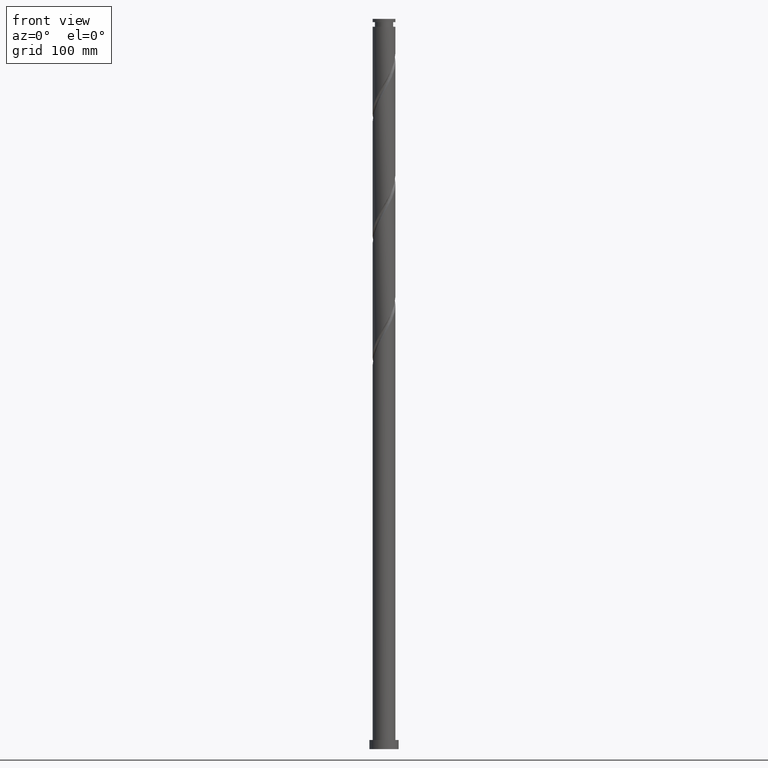
[diagram: clean part render]
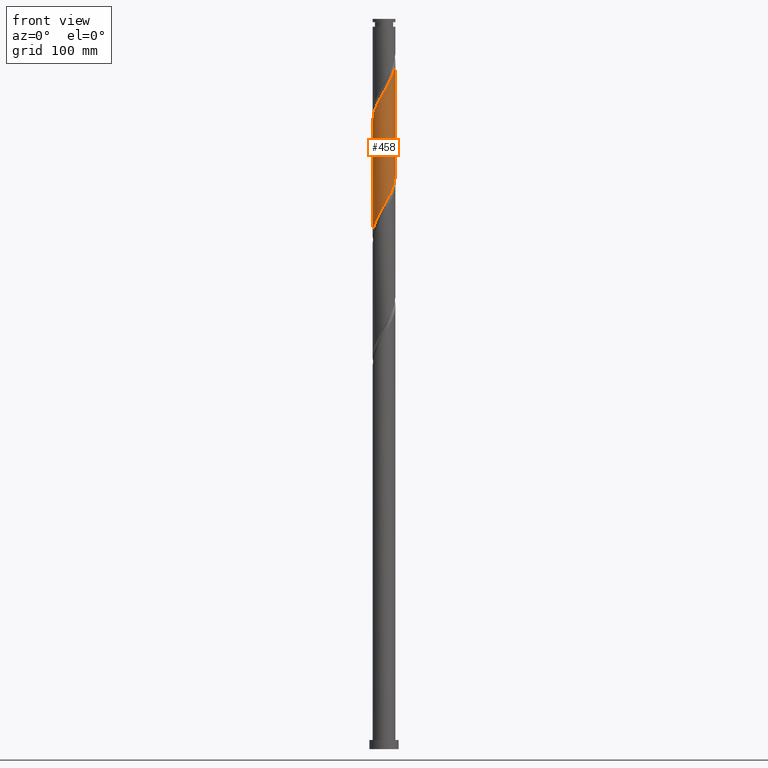
[diagram: same view with one face highlighted and labeled with its STEP entity id]
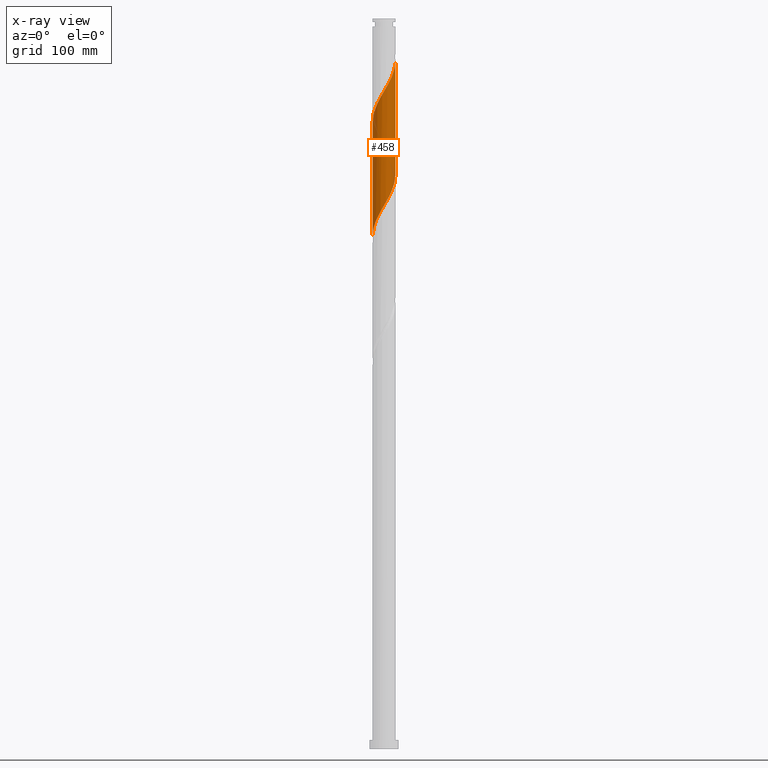
[diagram: x-ray of the same camera — body ghosted, the highlighted face saturated]
A machine part, front view. The second image highlights one B-rep face of the part: STEP entity #458.
The next image is the same camera in x-ray: the body ghosted, the highlighted face saturated — about 0% of this face is hidden behind the body in this view.
In plain terms, the highlighted cylindrical surface (edge-blend (fillet) strip) has radius 12.5 mm, axis along (-0, -0, -1).
Its self-contained STEP definition (entity closure, byte-faithful):
#2 = VECTOR ( 'NONE', #235, 1000.000000000000000 ) ;
#12 = CARTESIAN_POINT ( 'NONE',  ( -3.502532532788456887, -12.04388247588127570, 589.6548834491892421 ) ) ;
#14 = CARTESIAN_POINT ( 'NONE',  ( 12.50000000000001421, 5.971485022808058898E-15, 753.8240038799792728 ) ) ;
#29 = CARTESIAN_POINT ( 'NONE',  ( -11.26451581851407546, -5.418549932818430115, 696.6724273088383370 ) ) ;
#40 = CARTESIAN_POINT ( 'NONE',  ( -12.41357356760536668, -1.467375644356205155, 689.6548834491892421 ) ) ;
#53 = EDGE_LOOP ( 'NONE', ( #367, #498, #605, #328 ) ) ;
#62 = CARTESIAN_POINT ( 'NONE',  ( 12.00274651105806001, -3.490569608428352844, 622.9882167825226134 ) ) ;
#85 = CARTESIAN_POINT ( 'NONE',  ( 11.61580572391704358, -4.617689615404707126, 745.7952343263822286 ) ) ;
#108 = CARTESIAN_POINT ( 'NONE',  ( 6.330259180984804779, -10.77858147909816822, 731.7601466070838114 ) ) ;
#124 = CARTESIAN_POINT ( 'NONE',  ( 11.99843839451384575, -3.655176511351809765, 747.5496202912943318 ) ) ;
#140 = EDGE_CURVE ( 'NONE', #665, #241, #2147, .T. ) ;
#182 =( BOUNDED_CURVE ( )  B_SPLINE_CURVE ( 2, ( #975, #2081, #40, #999, #1697, #444, #29, #2073, #775, #801, #1504, #2226, #589, #1527, #2249, #1198, #2273, #1226, #847, #1956, #1746, #284, #1035, #2321, #1558, #1185, #108, #490, #861, #636, #1719, #1025, #1730, #682, #85, #124, #1570, #1911, #269, #1011, #310 ),
 .UNSPECIFIED., .F., .T. ) 
 B_SPLINE_CURVE_WITH_KNOTS ( ( 3, 2, 2, 2, 2, 2, 2, 2, 2, 2, 2, 2, 2, 2, 2, 2, 2, 2, 2, 2, 3 ),
 ( 0.5545295809515951024, 0.5592105263157894912, 0.5657894736842105088, 0.5723684210526316374, 0.5789473684210526550, 0.5855263157894736725, 0.5921052631578946901, 0.5986842105263157077, 0.6052631578947368363, 0.6118421052631579649, 0.6184210526315789824, 0.6250000000000000000, 0.6315789473684210176, 0.6381578947368420351, 0.6447368421052631637, 0.6513157894736842923, 0.6578947368421053099, 0.6644736842105263275, 0.6710526315789473450, 0.6776315789473683626, 0.6795295809515952135 ),
 .UNSPECIFIED. ) 
 CURVE ( )  GEOMETRIC_REPRESENTATION_ITEM ( )  RATIONAL_B_SPLINE_CURVE ( ( 0.9078162034606127584, 0.9068816855934197507, 0.9090909090909415902, 0.9059859027333685422, 0.9090909090909415902, 0.9059859027333685422, 0.9090909090909415902, 0.9059859027333685422, 0.9090909090909415902, 0.9059859027333685422, 0.9090909090909415902, 0.9059859027333685422, 0.9090909090909415902, 0.9059859027333685422, 0.9090909090909415902, 0.9059859027333685422, 0.9090909090909415902, 0.9059859027333685422, 0.9090909090909415902, 0.9059859027333685422, 0.9090909090909415902, 0.9059859027333685422, 0.9090909090909415902, 0.9059859027333685422, 0.9090909090909415902, 0.9059859027333685422, 0.9090909090909415902, 0.9059859027333685422, 0.9090909090909415902, 0.9059859027333685422, 0.9090909090909415902, 0.9059859027333685422, 0.9090909090909415902, 0.9059859027333685422, 0.9090909090909415902, 0.9059859027333685422, 0.9090909090909415902, 0.9059859027333685422, 0.9090909090909415902, 0.9081951262308903816, 0.9078162034606127584 ) ) 
 REPRESENTATION_ITEM ( '' )  );
#194 = CARTESIAN_POINT ( 'NONE',  ( -5.437120455758652326, -11.30312170976020347, 586.1461115193644673 ) ) ;
#200 = CARTESIAN_POINT ( 'NONE',  ( 1.624877814529943620, -12.39394094256739898, 598.4268132737503265 ) ) ;
#235 = DIRECTION ( 'NONE',  ( -0.000000000000000000, -0.000000000000000000, -1.000000000000000000 ) ) ;
#241 = VERTEX_POINT ( 'NONE', #1298 ) ;
#256 = CARTESIAN_POINT ( 'NONE',  ( -11.99843839451383509, -3.655176511351794666, 568.6022518702416164 ) ) ;
#261 = VECTOR ( 'NONE', #454, 1000.000000000000000 ) ;
#269 = CARTESIAN_POINT ( 'NONE',  ( 12.48579069699954758, -0.5958445021311560286, 752.8127781860312098 ) ) ;
#284 = CARTESIAN_POINT ( 'NONE',  ( 1.472404652744663478, -12.45611752411873674, 722.9882167825224997 ) ) ;
#310 = CARTESIAN_POINT ( 'NONE',  ( 12.50000000000001421, 5.971485022808058898E-15, 753.8240038799792728 ) ) ;
#328 = ORIENTED_EDGE ( 'NONE', *, *, #140, .F. ) ;
#367 = ORIENTED_EDGE ( 'NONE', *, *, #1900, .F. ) ;
#374 = CARTESIAN_POINT ( 'NONE',  ( 11.26451581851405770, -5.418549932818423898, 619.4794448526980659 ) ) ;
#375 = CARTESIAN_POINT ( 'NONE',  ( -4.469826494273550388, -11.67350209282074225, 587.9004974842770253 ) ) ;
#383 = CARTESIAN_POINT ( 'NONE',  ( 2.651869041106358349, -12.25929972816160785, 600.1811992386628845 ) ) ;
#419 = LINE ( 'NONE', #1875, #2 ) ;
#427 = CARTESIAN_POINT ( 'NONE',  ( 0.000000000000000000, 0.000000000000000000, 800.0000000000000000 ) ) ;
#430 = CARTESIAN_POINT ( 'NONE',  ( 8.894772993514918014, -8.782540258594758953, 612.4619009930487437 ) ) ;
#444 = CARTESIAN_POINT ( 'NONE',  ( -11.71350966700485330, -4.485145540232320371, 694.9180413439260064 ) ) ;
#454 = DIRECTION ( 'NONE',  ( -0.000000000000000000, -0.000000000000000000, -1.000000000000000000 ) ) ;
#458 = ADVANCED_FACE ( 'NONE', ( #622 ), #1146, .T. ) ;
#490 = CARTESIAN_POINT ( 'NONE',  ( 7.223397906210958119, -10.25404124843610632, 733.5145325719962557 ) ) ;
#498 = ORIENTED_EDGE ( 'NONE', *, *, #1902, .F. ) ;
#559 = CARTESIAN_POINT ( 'NONE',  ( 4.633515419724467677, -11.65561556037505753, 603.6899711684874319 ) ) ;
#574 = CARTESIAN_POINT ( 'NONE',  ( 12.41357356760535069, -1.467375644356205822, 626.4969887123472745 ) ) ;
#583 = CARTESIAN_POINT ( 'NONE',  ( 12.50000000000000000, -4.478613767106074545E-15, 628.9945349482237589 ) ) ;
#589 = CARTESIAN_POINT ( 'NONE',  ( -7.327901267867267698, -10.12678937316214522, 707.1987430983118657 ) ) ;
#605 = ORIENTED_EDGE ( 'NONE', *, *, #1934, .T. ) ;
#612 = CARTESIAN_POINT ( 'NONE',  ( 8.167030959368787535, -9.519582162300682882, 610.7075150281365268 ) ) ;
#622 = FACE_OUTER_BOUND ( 'NONE', #53, .T. ) ;
#636 = CARTESIAN_POINT ( 'NONE',  ( 8.812639891774823653, -8.925257272145218579, 737.0233045018205758 ) ) ;
#650 = CARTESIAN_POINT ( 'NONE',  ( -12.49999999999999645, -0.2980916780646157282, 562.8341912999970873 ) ) ;
#665 = VERTEX_POINT ( 'NONE', #1458 ) ;
#682 = CARTESIAN_POINT ( 'NONE',  ( 11.23317305332023786, -5.580202719457613370, 744.0408483614696706 ) ) ;
#728 = VERTEX_POINT ( 'NONE', #1265 ) ;
#757 = VERTEX_POINT ( 'NONE', #14 ) ;
#767 = CARTESIAN_POINT ( 'NONE',  ( -9.487067962851766012, -8.139136408012319635, 577.3741816948031556 ) ) ;
#775 = CARTESIAN_POINT ( 'NONE',  ( -10.21901849884218016, -7.198726340146689218, 700.1811992386628845 ) ) ;
#778 = CARTESIAN_POINT ( 'NONE',  ( -6.330259180984801226, -10.77858147909814868, 584.3917255544523641 ) ) ;
#801 = CARTESIAN_POINT ( 'NONE',  ( -9.622515027661060927, -8.045498354888838577, 701.9355852035749876 ) ) ;
#821 = CARTESIAN_POINT ( 'NONE',  ( -12.21742800420674335, -2.642811563851064971, 566.8478659053295132 ) ) ;
#832 = CARTESIAN_POINT ( 'NONE',  ( -11.61580572391702937, -4.617689615404697356, 570.3566378351539470 ) ) ;
#836 = LINE ( 'NONE', #2131, #261 ) ;
#847 = CARTESIAN_POINT ( 'NONE',  ( -1.624877814529950282, -12.39394094256741319, 717.7250588877856217 ) ) ;
#861 = CARTESIAN_POINT ( 'NONE',  ( 8.018018898992890442, -9.589649260290663335, 735.2689185369084726 ) ) ;
#936 = CARTESIAN_POINT ( 'NONE',  ( -8.018018898992885113, -9.589649260290647348, 580.8829536246278167 ) ) ;
#962 = CARTESIAN_POINT ( 'NONE',  ( -10.16149603392870837, -7.353015543879440230, 575.6197957298905976 ) ) ;
#975 = CARTESIAN_POINT ( 'NONE',  ( -12.50000000000001421, -8.360079031931281511E-15, 687.1573372133124167 ) ) ;
#999 = CARTESIAN_POINT ( 'NONE',  ( -12.29198335511129514, -2.495993676624378654, 691.4092694141015727 ) ) ;
#1011 = CARTESIAN_POINT ( 'NONE',  ( 12.50000000000001066, -0.2980916780646430952, 753.3176808615389746 ) ) ;
#1025 = CARTESIAN_POINT ( 'NONE',  ( 10.16149603392872258, -7.353015543879452665, 740.5320764316451232 ) ) ;
#1035 = CARTESIAN_POINT ( 'NONE',  ( 2.487468592766559183, -12.25000000000001599, 724.7426027474349439 ) ) ;
#1132 = AXIS2_PLACEMENT_3D ( 'NONE', #427, #1673, #1860 ) ;
#1146 = CYLINDRICAL_SURFACE ( 'NONE', #1132, 12.50000000000000000 ) ;
#1182 = CARTESIAN_POINT ( 'NONE',  ( -12.49999999999999645, -3.532133390990989560E-14, 562.3278682815570164 ) ) ;
#1185 = CARTESIAN_POINT ( 'NONE',  ( 5.437120455758649662, -11.30312170976022479, 730.0057606421714809 ) ) ;
#1198 = CARTESIAN_POINT ( 'NONE',  ( -4.633515419724479223, -11.65561556037507174, 712.4619009930487437 ) ) ;
#1226 = CARTESIAN_POINT ( 'NONE',  ( -2.651869041106372560, -12.25929972816161850, 715.9706729228732911 ) ) ;
#1265 = CARTESIAN_POINT ( 'NONE',  ( -12.50000000000001421, -8.360079031931281511E-15, 687.1573372133124167 ) ) ;
#1298 = CARTESIAN_POINT ( 'NONE',  ( -12.49999999999999645, -3.532133390990989560E-14, 562.3278682815570164 ) ) ;
#1299 = CARTESIAN_POINT ( 'NONE',  ( -8.812639891774814771, -8.925257272145200815, 579.1285676597153724 ) ) ;
#1307 = CARTESIAN_POINT ( 'NONE',  ( 12.29198335511128093, -2.495993676624380875, 624.7426027474348302 ) ) ;
#1308 = CARTESIAN_POINT ( 'NONE',  ( -0.4372590323955716785, -12.49234984054595721, 594.9180413439257791 ) ) ;
#1355 = CARTESIAN_POINT ( 'NONE',  ( -11.23317305332022364, -5.580202719457602711, 572.1110238000663912 ) ) ;
#1366 = CARTESIAN_POINT ( 'NONE',  ( -12.48579069699953337, -0.5958445021311531420, 563.3390939755050795 ) ) ;
#1437 = CARTESIAN_POINT ( 'NONE',  ( 10.21901849884216062, -7.198726340146687441, 615.9706729228732911 ) ) ;
#1458 = CARTESIAN_POINT ( 'NONE',  ( 12.50000000000000000, -4.478613767106074545E-15, 628.9945349482237589 ) ) ;
#1475 = CARTESIAN_POINT ( 'NONE',  ( 6.488771576365717664, -10.73399658402358092, 607.1987430983118657 ) ) ;
#1486 = CARTESIAN_POINT ( 'NONE',  ( 12.50000000000000000, -0.7362330219179104018, 627.7440078340381433 ) ) ;
#1504 = CARTESIAN_POINT ( 'NONE',  ( -8.894772993514934001, -8.782540258594766058, 703.6899711684874319 ) ) ;
#1508 = CARTESIAN_POINT ( 'NONE',  ( -7.223397906210956343, -10.25404124843609033, 582.6373395895401472 ) ) ;
#1527 = CARTESIAN_POINT ( 'NONE',  ( -6.488771576365729210, -10.73399658402359158, 708.9531290632239688 ) ) ;
#1537 = CARTESIAN_POINT ( 'NONE',  ( -10.69733454362446956, -6.466609131668519694, 573.8654097649786081 ) ) ;
#1558 = CARTESIAN_POINT ( 'NONE',  ( 4.469826494273553052, -11.67350209282075824, 728.2513746772592640 ) ) ;
#1570 = CARTESIAN_POINT ( 'NONE',  ( 12.21742800420675579, -2.642811563851077850, 749.3040062562067760 ) ) ;
#1635 = CARTESIAN_POINT ( 'NONE',  ( -2.487468592766562292, -12.25000000000000000, 591.4092694141012316 ) ) ;
#1664 = CARTESIAN_POINT ( 'NONE',  ( 0.5978865879535224526, -12.52858215697318478, 596.6724273088383370 ) ) ;
#1673 = DIRECTION ( 'NONE',  ( -0.000000000000000000, -0.000000000000000000, -1.000000000000000000 ) ) ;
#1697 = CARTESIAN_POINT ( 'NONE',  ( -12.00274651105807422, -3.490569608428349735, 693.1636553790137896 ) ) ;
#1719 = CARTESIAN_POINT ( 'NONE',  ( 9.487067962851774894, -8.139136408012335622, 738.7776904667327926 ) ) ;
#1730 = CARTESIAN_POINT ( 'NONE',  ( 10.69733454362448022, -6.466609131668537458, 742.2864623965573401 ) ) ;
#1746 = CARTESIAN_POINT ( 'NONE',  ( 0.4372590323955675151, -12.49234984054596787, 721.2338308176102828 ) ) ;
#1821 = CARTESIAN_POINT ( 'NONE',  ( 11.71350966700483553, -4.485145540232325700, 621.2338308176100554 ) ) ;
#1836 = CARTESIAN_POINT ( 'NONE',  ( 10.81552197002327631, -6.351954325404534529, 617.7250588877855080 ) ) ;
#1860 = DIRECTION ( 'NONE',  ( -1.000000000000000000, 0.000000000000000000, 0.000000000000000000 ) ) ;
#1875 = CARTESIAN_POINT ( 'NONE',  ( 12.50000000000000000, 1.530808498934191127E-15, 800.0000000000000000 ) ) ;
#1886 = CARTESIAN_POINT ( 'NONE',  ( 7.327901267867249047, -10.12678937316213634, 608.9531290632241962 ) ) ;
#1900 = EDGE_CURVE ( 'NONE', #757, #665, #419, .T. ) ;
#1902 = EDGE_CURVE ( 'NONE', #728, #757, #182, .T. ) ;
#1911 = CARTESIAN_POINT ( 'NONE',  ( 12.43641761389966227, -1.630446616350347044, 751.0583922211187655 ) ) ;
#1934 = EDGE_CURVE ( 'NONE', #728, #241, #836, .T. ) ;
#1943 = CARTESIAN_POINT ( 'NONE',  ( 9.622515027661041387, -8.045498354888836801, 614.2162869579610742 ) ) ;
#1956 = CARTESIAN_POINT ( 'NONE',  ( -0.5978865879535343320, -12.52858215697320077, 719.4794448526977249 ) ) ;
#2028 = CARTESIAN_POINT ( 'NONE',  ( 3.642692230415415011, -11.95745764426833446, 601.9355852035748740 ) ) ;
#2040 = CARTESIAN_POINT ( 'NONE',  ( -1.472404652744671472, -12.45611752411871898, 593.1636553790136759 ) ) ;
#2073 = CARTESIAN_POINT ( 'NONE',  ( -10.81552197002329585, -6.351954325404538082, 698.4268132737505539 ) ) ;
#2081 = CARTESIAN_POINT ( 'NONE',  ( -12.50000000000002132, -0.7362330219178633284, 688.4078643274976912 ) ) ;
#2131 = CARTESIAN_POINT ( 'NONE',  ( -12.50000000000000000, 0.000000000000000000, 800.0000000000000000 ) ) ;
#2147 =( BOUNDED_CURVE ( )  B_SPLINE_CURVE ( 2, ( #583, #1486, #574, #1307, #62, #1821, #374, #1836, #1437, #1943, #430, #612, #1886, #1475, #2200, #559, #2028, #383, #200, #1664, #1308, #2040, #1635, #12, #375, #194, #778, #1508, #936, #1299, #767, #962, #1537, #1355, #832, #256, #821, #2270, #1366, #650, #1182 ),
 .UNSPECIFIED., .F., .T. ) 
 B_SPLINE_CURVE_WITH_KNOTS ( ( 3, 2, 2, 2, 2, 2, 2, 2, 2, 2, 2, 2, 2, 2, 2, 2, 2, 2, 2, 2, 3 ),
 ( 0.5545295809515954355, 0.5592105263157894912, 0.5657894736842105088, 0.5723684210526315264, 0.5789473684210526550, 0.5855263157894736725, 0.5921052631578946901, 0.5986842105263158187, 0.6052631578947368363, 0.6118421052631578538, 0.6184210526315789824, 0.6250000000000000000, 0.6315789473684210176, 0.6381578947368421462, 0.6447368421052631637, 0.6513157894736841813, 0.6578947368421053099, 0.6644736842105263275, 0.6710526315789473450, 0.6776315789473684736, 0.6795295809515954355 ),
 .UNSPECIFIED. ) 
 CURVE ( )  GEOMETRIC_REPRESENTATION_ITEM ( )  RATIONAL_B_SPLINE_CURVE ( ( 0.9078162034606067632, 0.9068816855934138665, 0.9090909090909354839, 0.9059859027333625470, 0.9090909090909354839, 0.9059859027333625470, 0.9090909090909354839, 0.9059859027333625470, 0.9090909090909354839, 0.9059859027333625470, 0.9090909090909354839, 0.9059859027333625470, 0.9090909090909354839, 0.9059859027333625470, 0.9090909090909354839, 0.9059859027333625470, 0.9090909090909354839, 0.9059859027333625470, 0.9090909090909354839, 0.9059859027333625470, 0.9090909090909354839, 0.9059859027333625470, 0.9090909090909354839, 0.9059859027333625470, 0.9090909090909354839, 0.9059859027333625470, 0.9090909090909354839, 0.9059859027333625470, 0.9090909090909354839, 0.9059859027333625470, 0.9090909090909354839, 0.9059859027333625470, 0.9090909090909354839, 0.9059859027333625470, 0.9090909090909354839, 0.9059859027333625470, 0.9090909090909354839, 0.9059859027333625470, 0.9090909090909354839, 0.9081951262308842754, 0.9078162034606067632 ) ) 
 REPRESENTATION_ITEM ( '' )  );
#2200 = CARTESIAN_POINT ( 'NONE',  ( 5.561143498045096223, -11.19480607219932189, 605.4443571333996488 ) ) ;
#2226 = CARTESIAN_POINT ( 'NONE',  ( -8.167030959368799969, -9.519582162300695316, 705.4443571333995351 ) ) ;
#2249 = CARTESIAN_POINT ( 'NONE',  ( -5.561143498045107769, -11.19480607219933255, 710.7075150281364131 ) ) ;
#2270 = CARTESIAN_POINT ( 'NONE',  ( -12.43641761389964451, -1.630446616350340827, 565.0934799404170690 ) ) ;
#2273 = CARTESIAN_POINT ( 'NONE',  ( -3.642692230415424337, -11.95745764426834690, 714.2162869579611879 ) ) ;
#2321 = CARTESIAN_POINT ( 'NONE',  ( 3.502532532788452890, -12.04388247588129524, 726.4969887123471608 ) ) ;